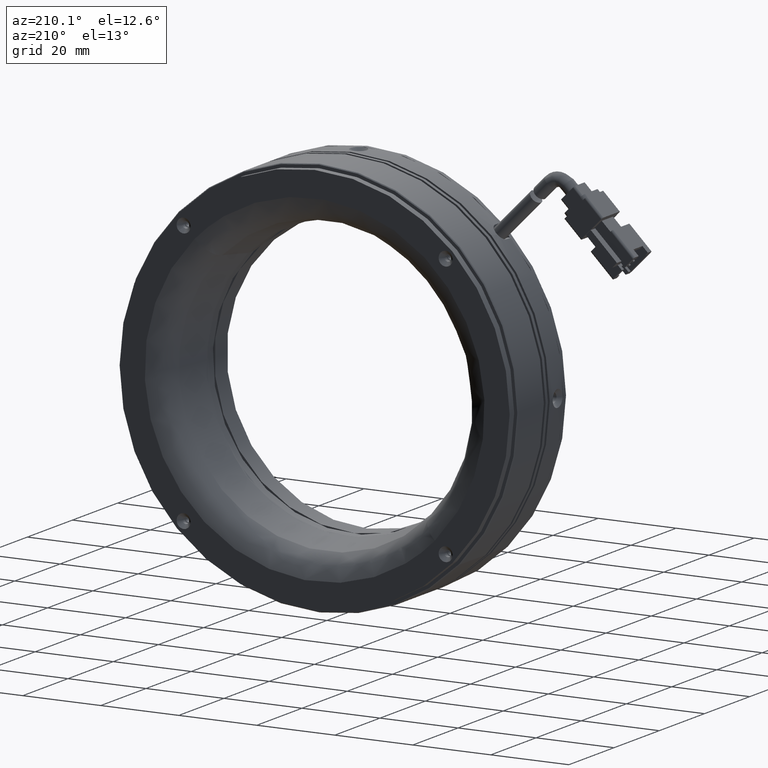
[diagram: clean part render]
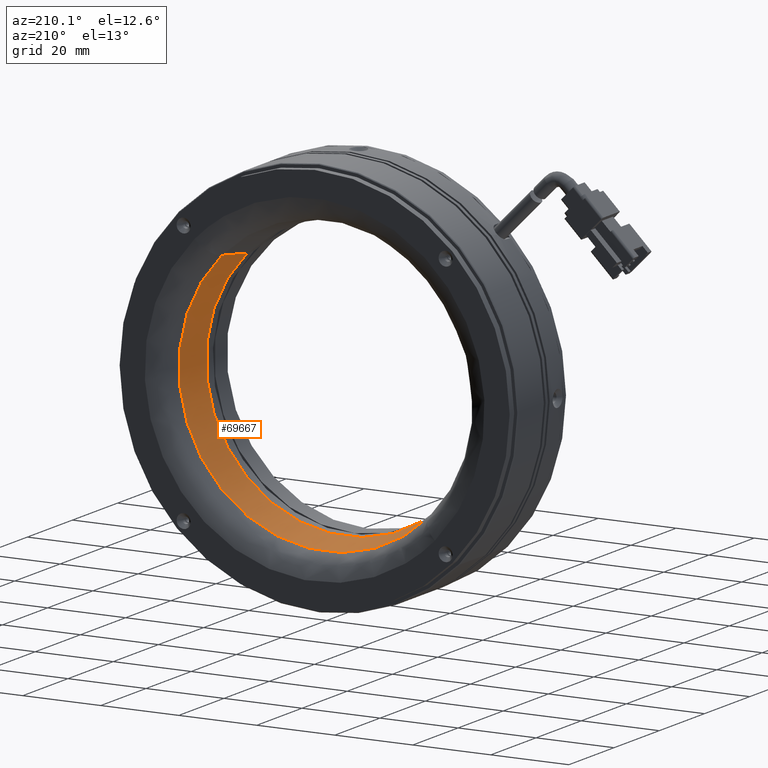
[diagram: same view with one face highlighted and labeled with its STEP entity id]
A machine part, auxiliary view. The second image highlights one B-rep face of the part: STEP entity #69667.
In plain terms, the highlighted conical surface has half-angle 10 deg.
Its self-contained STEP definition (entity closure, byte-faithful):
#5710 = DIRECTION ( 'NONE',  ( 0.7071067811865485700, 0.0000000000000000000, 0.7071067811865465700 ) ) ;
#5859 = VECTOR ( 'NONE', #68092, 999.9999999999998900 ) ;
#7213 = ORIENTED_EDGE ( 'NONE', *, *, #26378, .F. ) ;
#8103 = EDGE_CURVE ( 'NONE', #8481, #73497, #45665, .T. ) ;
#8481 = VERTEX_POINT ( 'NONE', #51743 ) ;
#9145 = CIRCLE ( 'NONE', #85410, 37.68601622387225100 ) ;
#14090 = VERTEX_POINT ( 'NONE', #38758 ) ;
#20218 = DIRECTION ( 'NONE',  ( 5.593399160027876600E-020, -1.000000000000000000, 5.741257191681600800E-020 ) ) ;
#21843 = CARTESIAN_POINT ( 'NONE',  ( 3.317165749935032900E-013, 11.23180113905660900, 2.766512764237486600E-015 ) ) ;
#24873 = VERTEX_POINT ( 'NONE', #78861 ) ;
#26378 = EDGE_CURVE ( 'NONE', #24873, #73497, #9145, .T. ) ;
#27159 = CARTESIAN_POINT ( 'NONE',  ( 26.64803762780669100, 20.44903624052007600, 26.64803762780628200 ) ) ;
#29203 = DIRECTION ( 'NONE',  ( 0.7071067811865485700, 1.443166791498336800E-016, 0.7071067811865464600 ) ) ;
#33018 = CONICAL_SURFACE ( 'NONE', #42642, 37.68601622387225100, 0.1745329251994285300 ) ;
#35459 = ORIENTED_EDGE ( 'NONE', *, *, #8103, .T. ) ;
#38758 = CARTESIAN_POINT ( 'NONE',  ( -25.49881428618152400, 11.23180113905660900, -25.49881428618178300 ) ) ;
#42307 = EDGE_CURVE ( 'NONE', #14090, #24873, #44611, .T. ) ;
#42642 = AXIS2_PLACEMENT_3D ( 'NONE', #63577, #70863, #5710 ) ;
#44611 = LINE ( 'NONE', #89980, #5859 ) ;
#45665 = LINE ( 'NONE', #27159, #84198 ) ;
#51366 = AXIS2_PLACEMENT_3D ( 'NONE', #21843, #72607, #29203 ) ;
#51743 = CARTESIAN_POINT ( 'NONE',  ( 25.49881428618219600, 11.23180113905660900, 25.49881428618178700 ) ) ;
#61325 = FACE_OUTER_BOUND ( 'NONE', #78857, .T. ) ;
#63405 = ORIENTED_EDGE ( 'NONE', *, *, #42307, .F. ) ;
#63577 = CARTESIAN_POINT ( 'NONE',  ( 3.317160594367525600E-013, 20.44903624052007600, 2.765983579064349600E-015 ) ) ;
#63742 = CARTESIAN_POINT ( 'NONE',  ( 3.317160594367525600E-013, 20.44903624052007300, 2.765983579064349600E-015 ) ) ;
#66495 = CIRCLE ( 'NONE', #51366, 36.06076898795116400 ) ;
#68092 = DIRECTION ( 'NONE',  ( -0.1227878039689699100, 0.9848077530122089100, -0.1227878039689695900 ) ) ;
#69667 = ADVANCED_FACE ( 'NONE', ( #61325 ), #33018, .F. ) ;
#70863 = DIRECTION ( 'NONE',  ( -5.593399160027876600E-020, 1.000000000000000000, -5.741257191681600800E-020 ) ) ;
#71027 = DIRECTION ( 'NONE',  ( -0.7071067811865485700, 0.0000000000000000000, -0.7071067811865465700 ) ) ;
#72607 = DIRECTION ( 'NONE',  ( -5.593399160027876600E-020, 1.000000000000000000, -5.741257191681600800E-020 ) ) ;
#73001 = CARTESIAN_POINT ( 'NONE',  ( 26.64803762780669100, 20.44903624052007300, 26.64803762780628200 ) ) ;
#73497 = VERTEX_POINT ( 'NONE', #73001 ) ;
#75976 = EDGE_CURVE ( 'NONE', #8481, #14090, #66495, .T. ) ;
#77849 = DIRECTION ( 'NONE',  ( 0.1227878039689699300, 0.9848077530122089100, 0.1227878039689695600 ) ) ;
#78857 = EDGE_LOOP ( 'NONE', ( #63405, #80574, #35459, #7213 ) ) ;
#78861 = CARTESIAN_POINT ( 'NONE',  ( -26.64803762780602300, 20.44903624052007300, -26.64803762780628200 ) ) ;
#80574 = ORIENTED_EDGE ( 'NONE', *, *, #75976, .F. ) ;
#84198 = VECTOR ( 'NONE', #77849, 999.9999999999998900 ) ;
#85410 = AXIS2_PLACEMENT_3D ( 'NONE', #63742, #20218, #71027 ) ;
#89980 = CARTESIAN_POINT ( 'NONE',  ( -26.64803762780602300, 20.44903624052007600, -26.64803762780628200 ) ) ;